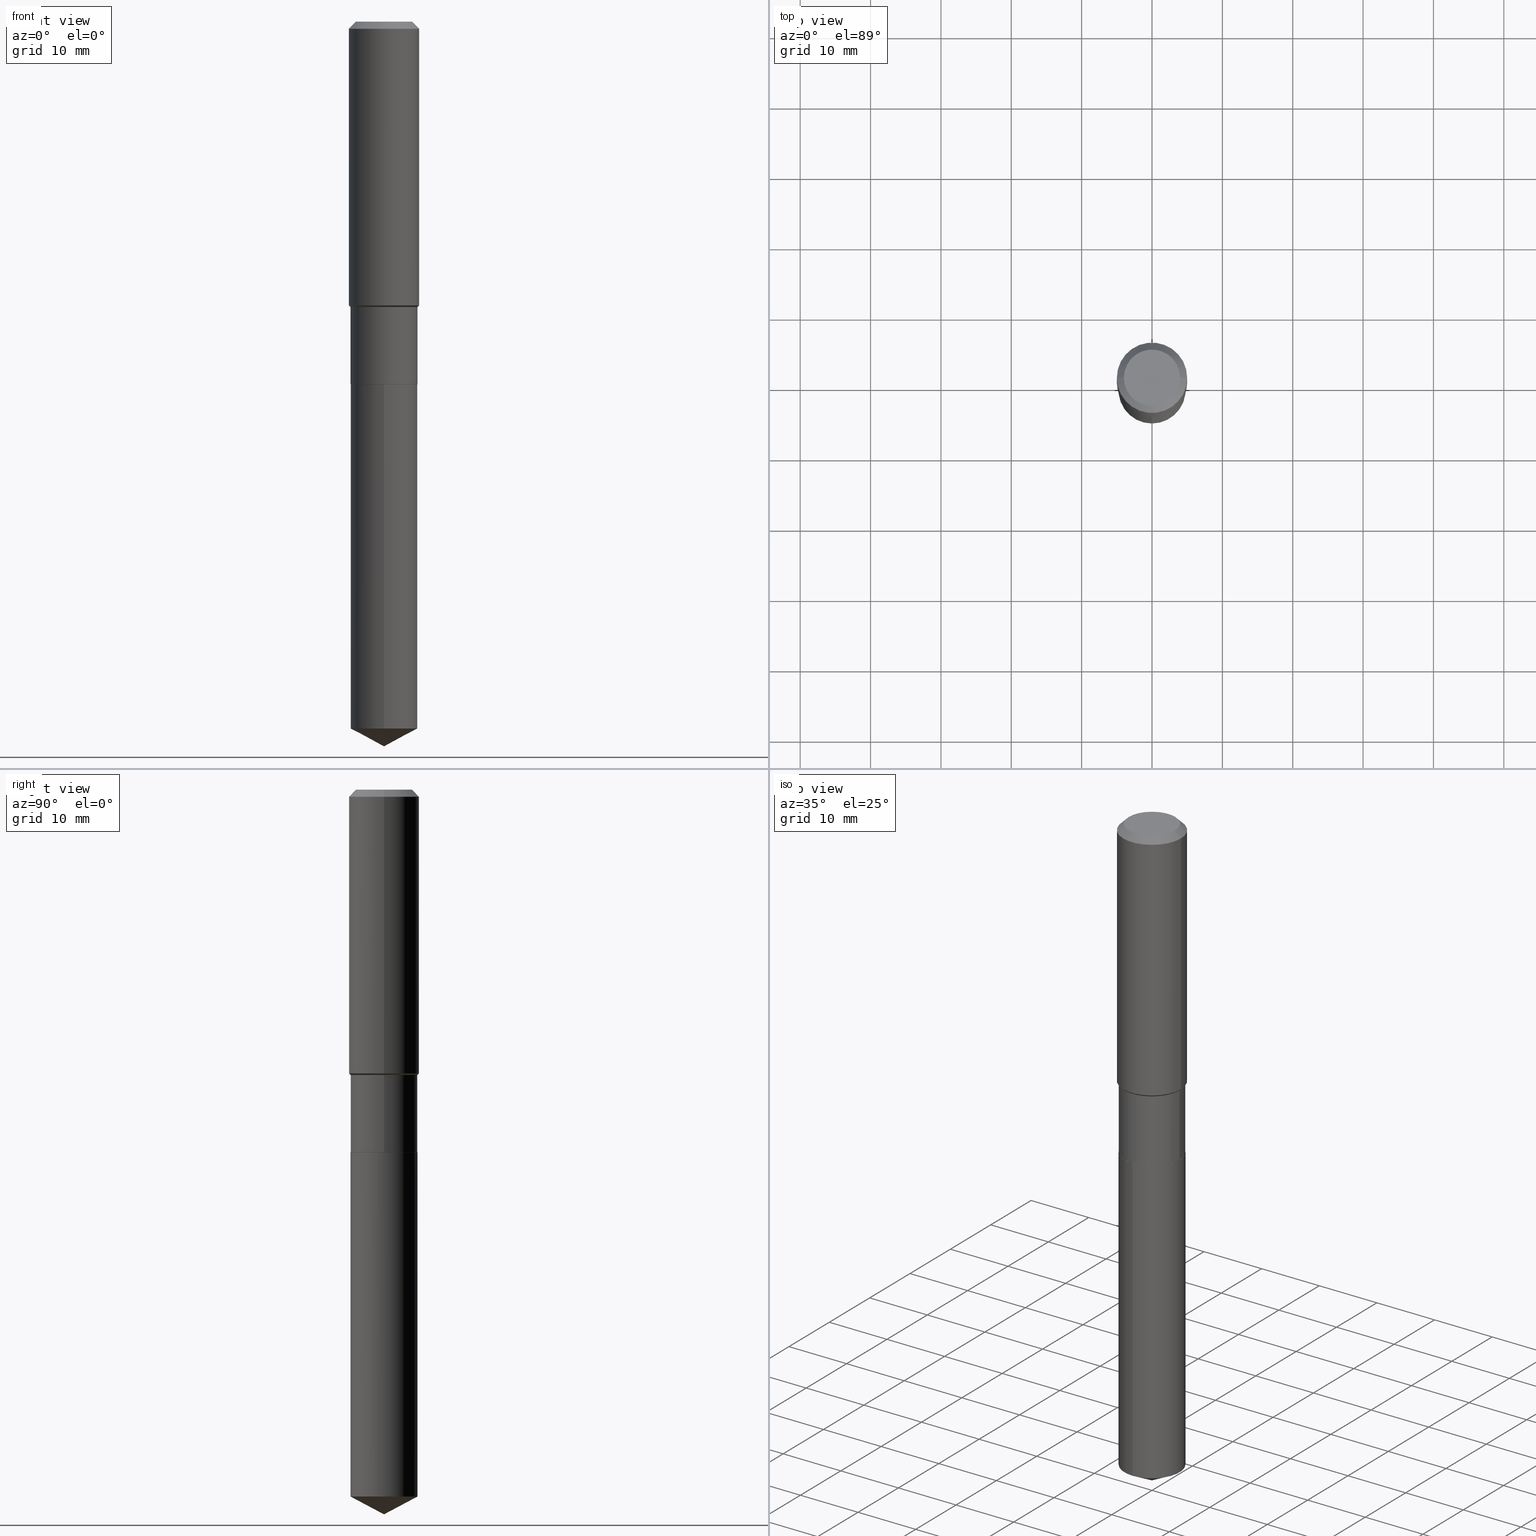
[diagram: canonical four-view strip — front | top / right | iso, engineering-drawing reading convention]
A machine part, canonical four-view strip (front | top / right | iso — engineering-drawing reading convention). The complete STEP part file that produces these views, byte-faithful:
ISO-10303-21;
HEADER;
FILE_DESCRIPTION (( 'STEP AP203' ),
    '1' );
FILE_NAME ('55021.STEP',
    '2024-04-24T16:26:25',
    ( '' ),
    ( '' ),
    'SwSTEP 2.0',
    'SolidWorks 2023',
    '' );
FILE_SCHEMA (( 'CONFIG_CONTROL_DESIGN' ));
ENDSEC;

DATA;
#1 = CLOSED_SHELL ( 'NONE', ( #46, #55, #351, #268, #65, #83, #325, #173, #468, #490, #275, #114 ) ) ;
#2 = CIRCLE ( 'NONE', #223, 0.1875000000000000278 ) ;
#3 = DIRECTION ( 'NONE',  ( -2.445465762291541811E-29, 3.491485697872021130E-15, 1.000000000000000000 ) ) ;
#5 = ORIENTED_EDGE ( 'NONE', *, *, #137, .F. ) ;
#4 = PRODUCT_RELATED_PRODUCT_CATEGORY ( 'detail', '', ( #408 ) ) ;
#6 = CARTESIAN_POINT ( 'NONE',  ( 3.904680042835807186E-29, -5.574848253730850378E-15, -1.596700000000000008 ) ) ;
#7 = VERTEX_POINT ( 'NONE', #287 ) ;
#8 = VECTOR ( 'NONE', #127, 39.37007874015748143 ) ;
#9 = DATE_AND_TIME ( #192, #159 ) ;
#10 = ORIENTED_EDGE ( 'NONE', *, *, #298, .T. ) ;
#11 = LOCAL_TIME ( 12, 26, 25.00000000000000000, #304 ) ;
#12 = CYLINDRICAL_SURFACE ( 'NONE', #423, 0.1875000000000000278 ) ;
#13 = EDGE_LOOP ( 'NONE', ( #116, #426, #232 ) ) ;
#14 = VERTEX_POINT ( 'NONE', #444 ) ;
#15 = EDGE_CURVE ( 'NONE', #122, #451, #369, .T. ) ;
#16 = CARTESIAN_POINT ( 'NONE',  ( 4.959410738943456063E-29, -7.080724155173897732E-15, -2.027999999999999581 ) ) ;
#17 = CLOSED_SHELL ( 'NONE', ( #123, #39, #226, #313, #234 ) ) ;
#18 = ORIENTED_EDGE ( 'NONE', *, *, #214, .F. ) ;
#19 = VECTOR ( 'NONE', #480, 39.37007874015748143 ) ;
#20 = DIRECTION ( 'NONE',  ( -0.7071067811865474617, 7.493145998870352582E-15, 0.7071067811865474617 ) ) ;
#21 = CARTESIAN_POINT ( 'NONE',  ( -0.1869999999999999996, -5.749360012128399581E-15, -2.027999999999999581 ) ) ;
#22 = COORDINATED_UNIVERSAL_TIME_OFFSET ( 5, 0, .BEHIND. ) ;
#23 = FACE_OUTER_BOUND ( 'NONE', #346, .T. ) ;
#24 = DIRECTION ( 'NONE',  ( 1.000000000000000000, -6.982962677686265133E-15, 0.000000000000000000 ) ) ;
#25 = LINE ( 'NONE', #171, #19 ) ;
#26 = CARTESIAN_POINT ( 'NONE',  ( 4.959410738943456063E-29, -7.080724155173897732E-15, -2.027999999999999581 ) ) ;
#27 = CARTESIAN_POINT ( 'NONE',  ( 0.000000000000000000, 0.000000000000000000, 0.000000000000000000 ) ) ;
#28 = CARTESIAN_POINT ( 'NONE',  ( 4.958188004540363822E-29, -7.078978414504476228E-15, -2.027499999999999414 ) ) ;
#29 = CYLINDRICAL_SURFACE ( 'NONE', #184, 0.1875000000000000278 ) ;
#30 = DIRECTION ( 'NONE',  ( -2.445468806185136597E-29, 3.491481338843145583E-15, 1.000000000000000000 ) ) ;
#31 = FACE_OUTER_BOUND ( 'NONE', #34, .T. ) ;
#32 = DESIGN_CONTEXT ( 'detailed design', #211, 'design' ) ;
#33 = EDGE_CURVE ( 'NONE', #82, #442, #251, .T. ) ;
#34 = EDGE_LOOP ( 'NONE', ( #299, #379, #227, #75 ) ) ;
#35 = AXIS2_PLACEMENT_3D ( 'NONE', #431, #392, #355 ) ;
#36 = EDGE_CURVE ( 'NONE', #464, #312, #103, .T. ) ;
#37 = AXIS2_PLACEMENT_3D ( 'NONE', #99, #252, #438 ) ;
#38 = VECTOR ( 'NONE', #280, 39.37007874015748143 ) ;
#39 = ADVANCED_FACE ( 'NONE', ( #175 ), #289, .T. ) ;
#40 = DIRECTION ( 'NONE',  ( -6.982962677686265922E-15, -1.000000000000000000, 2.913971193241880372E-15 ) ) ;
#41 = VERTEX_POINT ( 'NONE', #66 ) ;
#42 = EDGE_LOOP ( 'NONE', ( #124, #191 ) ) ;
#43 = VECTOR ( 'NONE', #86, 39.37007874015748143 ) ;
#44 = UNCERTAINTY_MEASURE_WITH_UNIT (LENGTH_MEASURE( 1.000000000000000082E-05 ), #413, 'distance_accuracy_value', 'NONE');
#45 = EDGE_LOOP ( 'NONE', ( #238, #186 ) ) ;
#46 = ADVANCED_FACE ( 'NONE', ( #31 ), #76, .T. ) ;
#47 = DIRECTION ( 'NONE',  ( 1.000000000000000000, -6.982962677686264344E-15, 0.000000000000000000 ) ) ;
#48 = ORIENTED_EDGE ( 'NONE', *, *, #181, .F. ) ;
#49 = CARTESIAN_POINT ( 'NONE',  ( 0.1968500000000001082, -1.374596203102542397E-15, 9.598753983154305062E-30 ) ) ;
#50 = ORIENTED_EDGE ( 'NONE', *, *, #242, .T. ) ;
#51 = CARTESIAN_POINT ( 'NONE',  ( -1.309305502066077978E-15, -0.1875000000000137668, -3.955304481563473029 ) ) ;
#52 = AXIS2_PLACEMENT_3D ( 'NONE', #180, #481, #136 ) ;
#53 = DIRECTION ( 'NONE',  ( -2.445468806185136597E-29, 3.491481338843145583E-15, 1.000000000000000000 ) ) ;
#54 = ORGANIZATION ( 'UNSPECIFIED', 'UNSPECIFIED', '' ) ;
#55 = ADVANCED_FACE ( 'NONE', ( #356 ), #477, .T. ) ;
#56 = FACE_OUTER_BOUND ( 'NONE', #422, .T. ) ;
#57 = CARTESIAN_POINT ( 'NONE',  ( 4.959410738943456624E-29, -7.080724155173898521E-15, -2.027999999999999581 ) ) ;
#58 = APPROVAL_ROLE ( '' ) ;
#59 = DIRECTION ( 'NONE',  ( 1.000000000000000000, -6.982962677686266711E-15, 0.000000000000000000 ) ) ;
#60 = CARTESIAN_POINT ( 'NONE',  ( 9.672567862117980810E-29, -1.380988018799741767E-14, -3.955304481563473473 ) ) ;
#61 = PERSON_AND_ORGANIZATION_ROLE ( 'classification_officer' ) ;
#62 = LINE ( 'NONE', #365, #391 ) ;
#63 = ORIENTED_EDGE ( 'NONE', *, *, #259, .T. ) ;
#64 = DIRECTION ( 'NONE',  ( -6.165590087286842340E-15, -0.8829475928589273215, 0.4694715627858898066 ) ) ;
#65 = ADVANCED_FACE ( 'NONE', ( #483 ), #485, .T. ) ;
#66 = CARTESIAN_POINT ( 'NONE',  ( 0.1574800000000000089, -1.284169937930321189E-15, 3.855188123724205385E-18 ) ) ;
#67 = CARTESIAN_POINT ( 'NONE',  ( 9.916363666092201945E-29, -1.415797450487104408E-14, -4.054999999999999716 ) ) ;
#68 = CIRCLE ( 'NONE', #257, 0.1869999999999999996 ) ;
#69 = COORDINATED_UNIVERSAL_TIME_OFFSET ( 5, 0, .BEHIND. ) ;
#70 = EDGE_CURVE ( 'NONE', #81, #385, #199, .T. ) ;
#71 = VECTOR ( 'NONE', #260, 39.37007874015748143 ) ;
#72 = DIRECTION ( 'NONE',  ( -6.982962677686265133E-15, -1.000000000000000000, 3.541896320645539569E-15 ) ) ;
#73 = APPROVAL_STATUS ( 'not_yet_approved' ) ;
#74 = DIRECTION ( 'NONE',  ( 1.000000000000000000, -6.982962677686266711E-15, 4.876176775795935793E-29 ) ) ;
#75 = ORIENTED_EDGE ( 'NONE', *, *, #344, .F. ) ;
#76 = CONICAL_SURFACE ( 'NONE', #446, 0.1869999999999999996, 0.7853981633972775267 ) ;
#77 = DIRECTION ( 'NONE',  ( -2.445468806185136597E-29, 3.491481338843145583E-15, 1.000000000000000000 ) ) ;
#78 = ORIENTED_EDGE ( 'NONE', *, *, #137, .T. ) ;
#79 = DIRECTION ( 'NONE',  ( 2.445465762291541251E-29, -3.491485697872021130E-15, -1.000000000000000000 ) ) ;
#81 = VERTEX_POINT ( 'NONE', #354 ) ;
#80 = APPROVAL ( #394, 'UNSPECIFIED' ) ;
#82 = VERTEX_POINT ( 'NONE', #21 ) ;
#83 = ADVANCED_FACE ( 'NONE', ( #167 ), #210, .T. ) ;
#84 = AXIS2_PLACEMENT_3D ( 'NONE', #284, #142, #202 ) ;
#85 = CIRCLE ( 'NONE', #434, 0.1968500000000000250 ) ;
#86 = DIRECTION ( 'NONE',  ( -2.445468806185136877E-29, 3.491481338843145188E-15, 1.000000000000000000 ) ) ;
#87 = ORIENTED_EDGE ( 'NONE', *, *, #414, .T. ) ;
#88 = LOCAL_TIME ( 12, 26, 25.00000000000000000, #205 ) ;
#89 = EDGE_LOOP ( 'NONE', ( #472, #420, #371, #197 ) ) ;
#90 = CARTESIAN_POINT ( 'NONE',  ( 9.916363666092200824E-29, -1.415797450487104408E-14, -4.054999999999999716 ) ) ;
#91 = ORIENTED_EDGE ( 'NONE', *, *, #198, .F. ) ;
#92 = CARTESIAN_POINT ( 'NONE',  ( -0.1968500000000001082, 1.398703375343757985E-15, -9.682923725166787881E-30 ) ) ;
#93 = AXIS2_PLACEMENT_3D ( 'NONE', #138, #404, #129 ) ;
#94 = DIRECTION ( 'NONE',  ( -2.445465762291541811E-29, 3.491485697872021130E-15, 1.000000000000000000 ) ) ;
#95 = CARTESIAN_POINT ( 'NONE',  ( -0.1968500000000000250, -1.441127886417702753E-15, -0.03937000000000029365 ) ) ;
#96 = DIRECTION ( 'NONE',  ( -6.982962677686265922E-15, -1.000000000000000000, 2.913971193241880372E-15 ) ) ;
#97 = PERSON_AND_ORGANIZATION ( #182, #54 ) ;
#98 = CARTESIAN_POINT ( 'NONE',  ( -4.713871149261283817E-47, 6.730158695841841775E-33, 1.927594061857935365E-18 ) ) ;
#99 = CARTESIAN_POINT ( 'NONE',  ( 4.959410738943456624E-29, -7.080724155173898521E-15, -2.027999999999999581 ) ) ;
#100 = DATE_AND_TIME ( #215, #239 ) ;
#101 = DIRECTION ( 'NONE',  ( 0.7071067811865450192, -7.319954787623246579E-15, -0.7071067811865500152 ) ) ;
#102 = ORIENTED_EDGE ( 'NONE', *, *, #246, .F. ) ;
#103 = CIRCLE ( 'NONE', #373, 0.1968500000000000250 ) ;
#104 = AXIS2_PLACEMENT_3D ( 'NONE', #271, #474, #360 ) ;
#105 = PERSON_AND_ORGANIZATION_ROLE ( 'design_owner' ) ;
#106 = CC_DESIGN_DATE_AND_TIME_ASSIGNMENT ( #9, #256, ( #220 ) ) ;
#107 = APPROVAL ( #326, 'UNSPECIFIED' ) ;
#108 = FACE_OUTER_BOUND ( 'NONE', #13, .T. ) ;
#109 = CYLINDRICAL_SURFACE ( 'NONE', #341, 0.1968500000000001082 ) ;
#110 = AXIS2_PLACEMENT_3D ( 'NONE', #292, #3, #72 ) ;
#111 =( LENGTH_UNIT ( ) NAMED_UNIT ( * ) SI_UNIT ( $, .METRE. ) );
#112 = DIRECTION ( 'NONE',  ( -2.445468806185136597E-29, 3.491481338843145583E-15, 1.000000000000000000 ) ) ;
#113 = ORIENTED_EDGE ( 'NONE', *, *, #427, .F. ) ;
#114 = ADVANCED_FACE ( 'NONE', ( #393 ), #382, .T. ) ;
#115 = CARTESIAN_POINT ( 'NONE',  ( 9.916376120384752595E-29, -1.415795682464992640E-14, -4.054999999999999716 ) ) ;
#116 = ORIENTED_EDGE ( 'NONE', *, *, #298, .F. ) ;
#117 = AXIS2_PLACEMENT_3D ( 'NONE', #315, #362, #139 ) ;
#118 = PRODUCT_DEFINITION_FORMATION_WITH_SPECIFIED_SOURCE ( 'ANY', '', #408, .NOT_KNOWN. ) ;
#119 = APPROVAL ( #73, 'UNSPECIFIED' ) ;
#120 = LINE ( 'NONE', #49, #43 ) ;
#121 = EDGE_LOOP ( 'NONE', ( #429, #386, #78, #411 ) ) ;
#122 = VERTEX_POINT ( 'NONE', #170 ) ;
#123 = ADVANCED_FACE ( 'NONE', ( #281 ), #29, .T. ) ;
#124 = ORIENTED_EDGE ( 'NONE', *, *, #368, .T. ) ;
#125 = LINE ( 'NONE', #115, #71 ) ;
#126 = ORIENTED_EDGE ( 'NONE', *, *, #374, .F. ) ;
#127 = DIRECTION ( 'NONE',  ( -2.445465762291541811E-29, 3.491485697872021130E-15, 1.000000000000000000 ) ) ;
#128 = ORIENTED_EDGE ( 'NONE', *, *, #258, .T. ) ;
#129 = DIRECTION ( 'NONE',  ( 1.000000000000000000, -6.982962677686266711E-15, 4.876176775795935793E-29 ) ) ;
#130 = CARTESIAN_POINT ( 'NONE',  ( 4.959410738943456624E-29, -7.080724155173898521E-15, -2.027999999999999581 ) ) ;
#131 = FACE_OUTER_BOUND ( 'NONE', #470, .T. ) ;
#132 = VECTOR ( 'NONE', #101, 39.37007874015748143 ) ;
#133 = VERTEX_POINT ( 'NONE', #207 ) ;
#134 = PERSON_AND_ORGANIZATION ( #182, #54 ) ;
#135 = FACE_OUTER_BOUND ( 'NONE', #42, .T. ) ;
#136 = DIRECTION ( 'NONE',  ( -1.000000000000000000, 6.982962677686265922E-15, 0.000000000000000000 ) ) ;
#137 = EDGE_CURVE ( 'NONE', #14, #261, #476, .T. ) ;
#138 = CARTESIAN_POINT ( 'NONE',  ( 0.000000000000000000, 0.000000000000000000, 0.000000000000000000 ) ) ;
#139 = DIRECTION ( 'NONE',  ( 1.000000000000000000, -6.982962677686266711E-15, 4.876176775795935793E-29 ) ) ;
#140 = PERSON_AND_ORGANIZATION ( #182, #54 ) ;
#141 =( NAMED_UNIT ( * ) SI_UNIT ( $, .STERADIAN. ) SOLID_ANGLE_UNIT ( ) );
#142 = DIRECTION ( 'NONE',  ( -2.445468806185136597E-29, 3.491481338843145583E-15, 1.000000000000000000 ) ) ;
#143 = EDGE_CURVE ( 'NONE', #82, #165, #145, .T. ) ;
#144 = VERTEX_POINT ( 'NONE', #67 ) ;
#145 = LINE ( 'NONE', #150, #456 ) ;
#146 = APPLICATION_CONTEXT ( 'configuration controlled 3d designs of mechanical parts and assemblies' ) ;
#147 = DIRECTION ( 'NONE',  ( -2.445468806185136877E-29, 3.491481338843145188E-15, 1.000000000000000000 ) ) ;
#148 = ORIENTED_EDGE ( 'NONE', *, *, #448, .F. ) ;
#149 = CIRCLE ( 'NONE', #453, 0.1968500000000002192 ) ;
#150 = CARTESIAN_POINT ( 'NONE',  ( -0.1869999999999999996, -5.752009239302511571E-15, -2.027999999999999581 ) ) ;
#151 = CC_DESIGN_PERSON_AND_ORGANIZATION_ASSIGNMENT ( #479, #398, ( #118 ) ) ;
#152 = DIRECTION ( 'NONE',  ( 1.000000000000000000, -6.982962677686264344E-15, 0.000000000000000000 ) ) ;
#153 = ADVANCED_BREP_SHAPE_REPRESENTATION ( '55021', ( #183, #337, #415 ), #262 ) ;
#154 = EDGE_LOOP ( 'NONE', ( #193, #213, #264, #270 ) ) ;
#155 = AXIS2_PLACEMENT_3D ( 'NONE', #303, #161, #465 ) ;
#156 = DIRECTION ( 'NONE',  ( 1.000000000000000000, -6.982962677686264344E-15, 0.000000000000000000 ) ) ;
#157 = APPROVAL_ROLE ( '' ) ;
#158 = VERTEX_POINT ( 'NONE', #295 ) ;
#159 = LOCAL_TIME ( 12, 26, 25.00000000000000000, #69 ) ;
#160 = ORIENTED_EDGE ( 'NONE', *, *, #380, .F. ) ;
#161 = DIRECTION ( 'NONE',  ( -2.438088387897960049E-29, 3.491481338843145188E-15, 1.000000000000000000 ) ) ;
#162 = ORIENTED_EDGE ( 'NONE', *, *, #448, .T. ) ;
#163 = AXIS2_PLACEMENT_3D ( 'NONE', #28, #240, #323 ) ;
#164 = DIRECTION ( 'NONE',  ( -2.445465762291541811E-29, 3.491485697872021130E-15, 1.000000000000000000 ) ) ;
#165 = VERTEX_POINT ( 'NONE', #454 ) ;
#166 = LINE ( 'NONE', #250, #8 ) ;
#167 = FACE_OUTER_BOUND ( 'NONE', #121, .T. ) ;
#168 = CALENDAR_DATE ( 2024, 24, 4 ) ;
#169 = DIRECTION ( 'NONE',  ( 2.445468806185136597E-29, -3.491481338843145583E-15, -1.000000000000000000 ) ) ;
#170 = CARTESIAN_POINT ( 'NONE',  ( -1.309305502066125507E-15, -0.1875000000000070777, -2.027999999999999137 ) ) ;
#171 = CARTESIAN_POINT ( 'NONE',  ( -0.1968500000000000250, 1.237136582792286225E-15, -0.03937000000000029365 ) ) ;
#172 = CIRCLE ( 'NONE', #452, 0.1968500000000002192 ) ;
#173 = ADVANCED_FACE ( 'NONE', ( #189 ), #109, .T. ) ;
#174 = CIRCLE ( 'NONE', #163, 0.1875000000000000278 ) ;
#175 = FACE_OUTER_BOUND ( 'NONE', #236, .T. ) ;
#176 = CC_DESIGN_APPROVAL ( #119, ( #220 ) ) ;
#177 = CARTESIAN_POINT ( 'NONE',  ( -9.427742298522567634E-47, 1.346031739168368355E-32, 3.855188123715870730E-18 ) ) ;
#178 = CARTESIAN_POINT ( 'NONE',  ( 4.959410738943456063E-29, -7.080724155173897732E-15, -2.027999999999999581 ) ) ;
#179 = MECHANICAL_CONTEXT ( 'NONE', #146, 'mechanical' ) ;
#180 = CARTESIAN_POINT ( 'NONE',  ( 9.627810689950954155E-31, -1.374596203102556547E-16, -0.03937000000000029365 ) ) ;
#181 = EDGE_CURVE ( 'NONE', #442, #82, #68, .T. ) ;
#182 = PERSON ( 'UNSPECIFIED', 'UNSPECIFIED', 'UNSPECIFIED', ('UNSPECIFIED'), ('UNSPECIFIED'), ('UNSPECIFIED') ) ;
#183 = MANIFOLD_SOLID_BREP ( 'Body-Move/Copy2[1]', #17 ) ;
#184 = AXIS2_PLACEMENT_3D ( 'NONE', #178, #324, #96 ) ;
#185 = CARTESIAN_POINT ( 'NONE',  ( -1.309305502066125507E-15, -0.1875000000000070777, -2.027999999999999137 ) ) ;
#186 = ORIENTED_EDGE ( 'NONE', *, *, #288, .T. ) ;
#187 = VECTOR ( 'NONE', #338, 39.37007874015748143 ) ;
#188 = AXIS2_PLACEMENT_3D ( 'NONE', #396, #286, #443 ) ;
#189 = FACE_OUTER_BOUND ( 'NONE', #462, .T. ) ;
#190 = CARTESIAN_POINT ( 'NONE',  ( 9.627810689950954155E-31, -1.374596203102556547E-16, -0.03937000000000029365 ) ) ;
#191 = ORIENTED_EDGE ( 'NONE', *, *, #427, .T. ) ;
#192 = CALENDAR_DATE ( 2024, 24, 4 ) ;
#193 = ORIENTED_EDGE ( 'NONE', *, *, #143, .F. ) ;
#194 = ORIENTED_EDGE ( 'NONE', *, *, #380, .T. ) ;
#195 = ORIENTED_EDGE ( 'NONE', *, *, #414, .F. ) ;
#196 = FACE_OUTER_BOUND ( 'NONE', #466, .T. ) ;
#197 = ORIENTED_EDGE ( 'NONE', *, *, #288, .F. ) ;
#198 = EDGE_CURVE ( 'NONE', #158, #133, #172, .T. ) ;
#199 = CIRCLE ( 'NONE', #278, 0.1875000000000000278 ) ;
#200 = AXIS2_PLACEMENT_3D ( 'NONE', #98, #247, #400 ) ;
#201 = CARTESIAN_POINT ( 'NONE',  ( 0.1869999999999999996, -8.386538175901229733E-15, -2.027999999999999581 ) ) ;
#202 = DIRECTION ( 'NONE',  ( 1.000000000000000000, -6.982962677686266711E-15, 4.876176775795935793E-29 ) ) ;
#203 = DIRECTION ( 'NONE',  ( -2.445468806185136877E-29, 3.491481338843145188E-15, 1.000000000000000000 ) ) ;
#204 = DIRECTION ( 'NONE',  ( -2.445468806185136597E-29, 3.491481338843145583E-15, 1.000000000000000000 ) ) ;
#205 = COORDINATED_UNIVERSAL_TIME_OFFSET ( 5, 0, .BEHIND. ) ;
#206 = CARTESIAN_POINT ( 'NONE',  ( 9.627810689950954155E-31, -1.374596203102556547E-16, -0.03937000000000029365 ) ) ;
#207 = CARTESIAN_POINT ( 'NONE',  ( -0.1968500000000002192, -4.143499527868906923E-15, -1.587349999999999595 ) ) ;
#208 = CARTESIAN_POINT ( 'NONE',  ( 0.1869999999999999996, -8.386538175901229733E-15, -2.027999999999999581 ) ) ;
#209 = CONICAL_SURFACE ( 'NONE', #110, 74.04434902938398011, 1.082104136236488934 ) ;
#210 = CYLINDRICAL_SURFACE ( 'NONE', #117, 0.1874999999999999722 ) ;
#211 = APPLICATION_CONTEXT ( 'configuration controlled 3d designs of mechanical parts and assemblies' ) ;
#212 = CARTESIAN_POINT ( 'NONE',  ( 0.1968500000000000250, -1.487948651171581601E-15, -0.03937000000000029365 ) ) ;
#213 = ORIENTED_EDGE ( 'NONE', *, *, #33, .T. ) ;
#214 = EDGE_CURVE ( 'NONE', #385, #122, #296, .T. ) ;
#215 = CALENDAR_DATE ( 2024, 24, 4 ) ;
#216 = AXIS2_PLACEMENT_3D ( 'NONE', #248, #241, #322 ) ;
#217 = DIRECTION ( 'NONE',  ( -2.445468806185136597E-29, 3.491481338843145583E-15, 1.000000000000000000 ) ) ;
#218 = CONICAL_SURFACE ( 'NONE', #333, 0.1874999999999999445, 0.7853981633974482790 ) ;
#219 = SHAPE_DEFINITION_REPRESENTATION ( #233, #153 ) ;
#220 = SECURITY_CLASSIFICATION ( '', '', #440 ) ;
#221 = APPROVAL_DATE_TIME ( #489, #119 ) ;
#222 = CARTESIAN_POINT ( 'NONE',  ( 0.1874999999999999722, -1.309305502066174811E-15, 9.142831454617378210E-30 ) ) ;
#223 = AXIS2_PLACEMENT_3D ( 'NONE', #16, #164, #455 ) ;
#224 = CARTESIAN_POINT ( 'NONE',  ( 0.1968500000000000250, -1.512055823412797189E-15, -0.03937000000000029365 ) ) ;
#225 = VERTEX_POINT ( 'NONE', #488 ) ;
#226 = ADVANCED_FACE ( 'NONE', ( #108 ), #209, .T. ) ;
#227 = ORIENTED_EDGE ( 'NONE', *, *, #336, .F. ) ;
#228 = EDGE_LOOP ( 'NONE', ( #300, #63, #377, #5 ) ) ;
#229 = VECTOR ( 'NONE', #332, 39.37007874015748143 ) ;
#230 = CIRCLE ( 'NONE', #35, 0.1875000000000000278 ) ;
#231 = CARTESIAN_POINT ( 'NONE',  ( 4.959410738943456063E-29, -7.080724155173897732E-15, -2.027999999999999581 ) ) ;
#232 = ORIENTED_EDGE ( 'NONE', *, *, #70, .F. ) ;
#233 = PRODUCT_DEFINITION_SHAPE ( 'NONE', 'NONE',  #273 ) ;
#234 = ADVANCED_FACE ( 'NONE', ( #235 ), #463, .F. ) ;
#235 = FACE_OUTER_BOUND ( 'NONE', #45, .T. ) ;
#236 = EDGE_LOOP ( 'NONE', ( #126, #10, #432 ) ) ;
#237 = DIRECTION ( 'NONE',  ( 1.000000000000000000, -6.982962677686265922E-15, 0.000000000000000000 ) ) ;
#238 = ORIENTED_EDGE ( 'NONE', *, *, #15, .T. ) ;
#239 = LOCAL_TIME ( 12, 26, 25.00000000000000000, #285 ) ;
#240 = DIRECTION ( 'NONE',  ( -2.445468806185136597E-29, 3.491481338843145583E-15, 1.000000000000000000 ) ) ;
#241 = DIRECTION ( 'NONE',  ( -2.445465762291541811E-29, 3.491485697872021130E-15, 1.000000000000000000 ) ) ;
#242 = EDGE_CURVE ( 'NONE', #7, #261, #447, .T. ) ;
#243 = PERSON_AND_ORGANIZATION ( #182, #54 ) ;
#244 = DIRECTION ( 'NONE',  ( 0.7071067811865474617, -2.468850131082256666E-15, 0.7071067811865474617 ) ) ;
#245 = ORIENTED_EDGE ( 'NONE', *, *, #475, .F. ) ;
#246 = EDGE_CURVE ( 'NONE', #312, #464, #85, .T. ) ;
#247 = DIRECTION ( 'NONE',  ( 2.438088387897960049E-29, -3.491481338843145188E-15, -1.000000000000000000 ) ) ;
#248 = CARTESIAN_POINT ( 'NONE',  ( -8.636180977866881528E-28, 1.233021011805946806E-13, 35.31507874015748172 ) ) ;
#249 = DATE_AND_TIME ( #357, #88 ) ;
#250 = CARTESIAN_POINT ( 'NONE',  ( 1.332267629550237152E-15, 0.1874999999999929501, -2.028000000000000025 ) ) ;
#251 = CIRCLE ( 'NONE', #37, 0.1869999999999999996 ) ;
#252 = DIRECTION ( 'NONE',  ( -2.445468806185136597E-29, 3.491481338843145583E-15, 1.000000000000000000 ) ) ;
#253 = APPROVAL_ROLE ( '' ) ;
#254 = EDGE_CURVE ( 'NONE', #261, #7, #384, .T. ) ;
#255 = DIRECTION ( 'NONE',  ( 1.000000000000000000, -6.982962677686265133E-15, 0.000000000000000000 ) ) ;
#256 = DATE_TIME_ROLE ( 'classification_date' ) ;
#257 = AXIS2_PLACEMENT_3D ( 'NONE', #335, #112, #255 ) ;
#258 = EDGE_CURVE ( 'NONE', #158, #312, #120, .T. ) ;
#259 = EDGE_CURVE ( 'NONE', #165, #7, #381, .T. ) ;
#260 = DIRECTION ( 'NONE',  ( 6.273719981627773176E-15, 0.8829475928589307632, 0.4694715627858835894 ) ) ;
#261 = VERTEX_POINT ( 'NONE', #263 ) ;
#262 =( GEOMETRIC_REPRESENTATION_CONTEXT ( 3 ) GLOBAL_UNCERTAINTY_ASSIGNED_CONTEXT ( ( #44 ) ) GLOBAL_UNIT_ASSIGNED_CONTEXT ( ( #413, #487, #141 ) ) REPRESENTATION_CONTEXT ( 'NONE', 'WORKASPACE' ) );
#263 = CARTESIAN_POINT ( 'NONE',  ( 0.1874999999999999445, -6.884153755797024597E-15, -1.596700000000000008 ) ) ;
#264 = ORIENTED_EDGE ( 'NONE', *, *, #344, .T. ) ;
#265 = DIRECTION ( 'NONE',  ( 6.982962677686265922E-15, 1.000000000000000000, -3.491485697872021130E-15 ) ) ;
#266 = EDGE_LOOP ( 'NONE', ( #272, #162, #91, #195 ) ) ;
#267 = ORIENTED_EDGE ( 'NONE', *, *, #15, .F. ) ;
#268 = ADVANCED_FACE ( 'NONE', ( #349 ), #218, .T. ) ;
#269 = AXIS2_PLACEMENT_3D ( 'NONE', #177, #30, #317 ) ;
#270 = ORIENTED_EDGE ( 'NONE', *, *, #418, .F. ) ;
#271 = CARTESIAN_POINT ( 'NONE',  ( -9.427742298522567634E-47, 1.346031739168368355E-32, 3.855188123715870730E-18 ) ) ;
#272 = ORIENTED_EDGE ( 'NONE', *, *, #254, .T. ) ;
#273 = PRODUCT_DEFINITION ( 'UNKNOWN', '', #118, #32 ) ;
#274 = LINE ( 'NONE', #90, #320 ) ;
#275 = ADVANCED_FACE ( 'NONE', ( #196 ), #416, .F. ) ;
#276 = DIRECTION ( 'NONE',  ( -6.982962677686265922E-15, -1.000000000000000000, 2.913971193241880372E-15 ) ) ;
#277 = APPROVAL_DATE_TIME ( #100, #107 ) ;
#278 = AXIS2_PLACEMENT_3D ( 'NONE', #60, #94, #276 ) ;
#279 = VECTOR ( 'NONE', #20, 39.37007874015748854 ) ;
#280 = DIRECTION ( 'NONE',  ( 0.7071067811864267805, -2.468850131080992517E-15, 0.7071067811866682540 ) ) ;
#281 = FACE_OUTER_BOUND ( 'NONE', #293, .T. ) ;
#282 = PERSON_AND_ORGANIZATION_ROLE ( 'design_supplier' ) ;
#283 = PLANE ( 'NONE',  #200 ) ;
#284 = CARTESIAN_POINT ( 'NONE',  ( 0.000000000000000000, 0.000000000000000000, 0.000000000000000000 ) ) ;
#285 = COORDINATED_UNIVERSAL_TIME_OFFSET ( 5, 0, .BEHIND. ) ;
#286 = DIRECTION ( 'NONE',  ( -2.445468806185136597E-29, 3.491481338843145583E-15, 1.000000000000000000 ) ) ;
#287 = CARTESIAN_POINT ( 'NONE',  ( -0.1874999999999999445, -4.994645704567475454E-15, -1.596700000000000008 ) ) ;
#288 = EDGE_CURVE ( 'NONE', #451, #122, #2, .T. ) ;
#289 = CONICAL_SURFACE ( 'NONE', #216, 74.04434902938398011, 1.082104136236488934 ) ;
#290 = CIRCLE ( 'NONE', #104, 0.1574800000000000089 ) ;
#291 = DIRECTION ( 'NONE',  ( 1.000000000000000000, -6.982962677686265133E-15, 0.000000000000000000 ) ) ;
#292 = CARTESIAN_POINT ( 'NONE',  ( -8.636180977866881528E-28, 1.233021011805946806E-13, 35.31507874015748172 ) ) ;
#293 = EDGE_LOOP ( 'NONE', ( #334, #348, #267, #18 ) ) ;
#294 = AXIS2_PLACEMENT_3D ( 'NONE', #421, #79, #265 ) ;
#295 = CARTESIAN_POINT ( 'NONE',  ( 0.1968500000000002192, -6.916799106315208686E-15, -1.587349999999999595 ) ) ;
#296 = LINE ( 'NONE', #185, #229 ) ;
#297 = ORIENTED_EDGE ( 'NONE', *, *, #399, .F. ) ;
#298 = EDGE_CURVE ( 'NONE', #144, #81, #125, .T. ) ;
#299 = ORIENTED_EDGE ( 'NONE', *, *, #181, .T. ) ;
#300 = ORIENTED_EDGE ( 'NONE', *, *, #336, .T. ) ;
#301 = APPROVAL_PERSON_ORGANIZATION ( #243, #80, #58 ) ;
#302 = CC_DESIGN_PERSON_AND_ORGANIZATION_ASSIGNMENT ( #134, #282, ( #118 ) ) ;
#303 = CARTESIAN_POINT ( 'NONE',  ( 2.890591265467325299E-29, -1.004339139108359101E-14, -2.027999999999999581 ) ) ;
#304 = COORDINATED_UNIVERSAL_TIME_OFFSET ( 5, 0, .BEHIND. ) ;
#305 = ORIENTED_EDGE ( 'NONE', *, *, #399, .T. ) ;
#306 = CC_DESIGN_DATE_AND_TIME_ASSIGNMENT ( #316, #435, ( #273 ) ) ;
#307 = ORIENTED_EDGE ( 'NONE', *, *, #246, .T. ) ;
#308 = CARTESIAN_POINT ( 'NONE',  ( -0.1874999999999999722, 1.332267629550187651E-15, -9.223003294227946589E-30 ) ) ;
#309 = ORIENTED_EDGE ( 'NONE', *, *, #475, .T. ) ;
#310 = CIRCLE ( 'NONE', #269, 0.1574800000000000089 ) ;
#311 = CARTESIAN_POINT ( 'NONE',  ( 4.958188004540363822E-29, -7.078978414504476228E-15, -2.027499999999999414 ) ) ;
#312 = VERTEX_POINT ( 'NONE', #224 ) ;
#313 = ADVANCED_FACE ( 'NONE', ( #345 ), #12, .T. ) ;
#314 = CARTESIAN_POINT ( 'NONE',  ( 1.332267629550284681E-15, 0.1874999999999929501, -2.028000000000000025 ) ) ;
#315 = CARTESIAN_POINT ( 'NONE',  ( 0.000000000000000000, 0.000000000000000000, 0.000000000000000000 ) ) ;
#316 = DATE_AND_TIME ( #168, #410 ) ;
#317 = DIRECTION ( 'NONE',  ( 1.000000000000000000, -6.982962677686265922E-15, 4.876223630392693006E-29 ) ) ;
#318 = DIRECTION ( 'NONE',  ( -2.445465762291541811E-29, 3.491485697872021130E-15, 1.000000000000000000 ) ) ;
#319 = APPROVAL_DATE_TIME ( #249, #80 ) ;
#320 = VECTOR ( 'NONE', #64, 39.37007874015748143 ) ;
#321 = LINE ( 'NONE', #92, #370 ) ;
#322 = DIRECTION ( 'NONE',  ( -6.982962677686265133E-15, -1.000000000000000000, 3.541896320645539569E-15 ) ) ;
#323 = DIRECTION ( 'NONE',  ( 1.000000000000000000, -6.982962677686266711E-15, 0.000000000000000000 ) ) ;
#324 = DIRECTION ( 'NONE',  ( -2.445465762291541811E-29, 3.491485697872021130E-15, 1.000000000000000000 ) ) ;
#325 = ADVANCED_FACE ( 'NONE', ( #131 ), #467, .T. ) ;
#326 = APPROVAL_STATUS ( 'not_yet_approved' ) ;
#327 = ORIENTED_EDGE ( 'NONE', *, *, #198, .T. ) ;
#328 = PERSON_AND_ORGANIZATION ( #182, #54 ) ;
#329 = CC_DESIGN_APPROVAL ( #107, ( #273 ) ) ;
#330 = DIRECTION ( 'NONE',  ( -2.445468806185136597E-29, 3.491481338843145583E-15, 1.000000000000000000 ) ) ;
#331 = CC_DESIGN_PERSON_AND_ORGANIZATION_ASSIGNMENT ( #328, #105, ( #408 ) ) ;
#332 = DIRECTION ( 'NONE',  ( -2.445465762291541811E-29, 3.491485697872021130E-15, 1.000000000000000000 ) ) ;
#333 = AXIS2_PLACEMENT_3D ( 'NONE', #6, #347, #156 ) ;
#334 = ORIENTED_EDGE ( 'NONE', *, *, #457, .T. ) ;
#335 = CARTESIAN_POINT ( 'NONE',  ( 4.959410738943456624E-29, -7.080724155173898521E-15, -2.027999999999999581 ) ) ;
#336 = EDGE_CURVE ( 'NONE', #14, #165, #174, .T. ) ;
#337 = MANIFOLD_SOLID_BREP ( 'Body-Move/Copy2[2]', #1 ) ;
#338 = DIRECTION ( 'NONE',  ( -2.445468806185136877E-29, 3.491481338843145188E-15, 1.000000000000000000 ) ) ;
#339 = ORIENTED_EDGE ( 'NONE', *, *, #439, .F. ) ;
#340 = CARTESIAN_POINT ( 'NONE',  ( 3.904680042835807186E-29, -5.574848253730850378E-15, -1.596700000000000008 ) ) ;
#341 = AXIS2_PLACEMENT_3D ( 'NONE', #450, #330, #74 ) ;
#342 = ORIENTED_EDGE ( 'NONE', *, *, #36, .T. ) ;
#343 = CONICAL_SURFACE ( 'NONE', #375, 0.1968500000000000250, 0.7853981633974447263 ) ;
#344 = EDGE_CURVE ( 'NONE', #442, #14, #387, .T. ) ;
#345 = FACE_OUTER_BOUND ( 'NONE', #89, .T. ) ;
#346 = EDGE_LOOP ( 'NONE', ( #297, #417, #309, #342 ) ) ;
#347 = DIRECTION ( 'NONE',  ( -2.445468806185136597E-29, 3.491481338843145583E-15, 1.000000000000000000 ) ) ;
#348 = ORIENTED_EDGE ( 'NONE', *, *, #361, .T. ) ;
#349 = FACE_OUTER_BOUND ( 'NONE', #266, .T. ) ;
#350 = ORIENTED_EDGE ( 'NONE', *, *, #439, .T. ) ;
#351 = ADVANCED_FACE ( 'NONE', ( #56 ), #471, .T. ) ;
#352 = AXIS2_PLACEMENT_3D ( 'NONE', #340, #419, #47 ) ;
#353 = CARTESIAN_POINT ( 'NONE',  ( -0.1874999999999999445, -4.242580624180662529E-15, -1.596700000000000008 ) ) ;
#354 = CARTESIAN_POINT ( 'NONE',  ( 1.332267629550284287E-15, 0.1874999999999861777, -3.955304481563474361 ) ) ;
#355 = DIRECTION ( 'NONE',  ( -6.982962677686265922E-15, -1.000000000000000000, 2.913971193241880372E-15 ) ) ;
#356 = FACE_OUTER_BOUND ( 'NONE', #359, .T. ) ;
#357 = CALENDAR_DATE ( 2024, 24, 4 ) ;
#358 = DIRECTION ( 'NONE',  ( -1.000000000000000000, 6.982962677686265922E-15, 0.000000000000000000 ) ) ;
#359 = EDGE_LOOP ( 'NONE', ( #113, #305, #307, #245 ) ) ;
#360 = DIRECTION ( 'NONE',  ( 1.000000000000000000, -6.982962677686265922E-15, 4.876223630392693006E-29 ) ) ;
#361 = EDGE_CURVE ( 'NONE', #81, #451, #166, .T. ) ;
#362 = DIRECTION ( 'NONE',  ( -2.445468806185136597E-29, 3.491481338843145583E-15, 1.000000000000000000 ) ) ;
#363 = APPROVAL_PERSON_ORGANIZATION ( #412, #119, #157 ) ;
#364 = APPLICATION_PROTOCOL_DEFINITION ( 'international standard', 'config_control_design', 1994, #211 ) ;
#365 = CARTESIAN_POINT ( 'NONE',  ( 0.1874999999999999445, -6.884153755797024597E-15, -1.596700000000000008 ) ) ;
#366 = DIRECTION ( 'NONE',  ( 1.000000000000000000, -6.982962677686265922E-15, 0.000000000000000000 ) ) ;
#367 = DIRECTION ( 'NONE',  ( -0.7071067811864267805, 7.493145998869918709E-15, 0.7071067811866682540 ) ) ;
#368 = EDGE_CURVE ( 'NONE', #225, #41, #310, .T. ) ;
#369 = CIRCLE ( 'NONE', #433, 0.1875000000000000278 ) ;
#370 = VECTOR ( 'NONE', #203, 39.37007874015748143 ) ;
#371 = ORIENTED_EDGE ( 'NONE', *, *, #214, .T. ) ;
#372 = DIRECTION ( 'NONE',  ( 1.000000000000000000, -6.982962677686265922E-15, 0.000000000000000000 ) ) ;
#373 = AXIS2_PLACEMENT_3D ( 'NONE', #405, #388, #366 ) ;
#374 = EDGE_CURVE ( 'NONE', #144, #385, #274, .T. ) ;
#375 = AXIS2_PLACEMENT_3D ( 'NONE', #206, #169, #358 ) ;
#376 = DIRECTION ( 'NONE',  ( -2.445465762291541811E-29, 3.491485697872021130E-15, 1.000000000000000000 ) ) ;
#377 = ORIENTED_EDGE ( 'NONE', *, *, #254, .F. ) ;
#378 = CARTESIAN_POINT ( 'NONE',  ( 3.904680042835807186E-29, -5.574848253730850378E-15, -1.596700000000000008 ) ) ;
#379 = ORIENTED_EDGE ( 'NONE', *, *, #143, .T. ) ;
#380 = EDGE_CURVE ( 'NONE', #133, #464, #321, .T. ) ;
#381 = LINE ( 'NONE', #308, #187 ) ;
#382 = CONICAL_SURFACE ( 'NONE', #390, 0.1869999999999999996, 0.7853981633972775267 ) ;
#383 = ORIENTED_EDGE ( 'NONE', *, *, #33, .F. ) ;
#384 = CIRCLE ( 'NONE', #352, 0.1874999999999999445 ) ;
#385 = VERTEX_POINT ( 'NONE', #51 ) ;
#386 = ORIENTED_EDGE ( 'NONE', *, *, #418, .T. ) ;
#387 = LINE ( 'NONE', #208, #38 ) ;
#388 = DIRECTION ( 'NONE',  ( -2.445468806185136597E-29, 3.491481338843145583E-15, 1.000000000000000000 ) ) ;
#389 = VECTOR ( 'NONE', #147, 39.37007874015748143 ) ;
#390 = AXIS2_PLACEMENT_3D ( 'NONE', #57, #204, #24 ) ;
#391 = VECTOR ( 'NONE', #244, 39.37007874015748854 ) ;
#392 = DIRECTION ( 'NONE',  ( -2.445465762291541811E-29, 3.491485697872021130E-15, 1.000000000000000000 ) ) ;
#393 = FACE_OUTER_BOUND ( 'NONE', #154, .T. ) ;
#394 = APPROVAL_STATUS ( 'not_yet_approved' ) ;
#395 = DIMENSIONAL_EXPONENTS ( 1.000000000000000000, 0.000000000000000000, 0.000000000000000000, 0.000000000000000000, 0.000000000000000000, 0.000000000000000000, 0.000000000000000000 ) ;
#396 = CARTESIAN_POINT ( 'NONE',  ( 3.904680042835807186E-29, -5.574848253730850378E-15, -1.596700000000000008 ) ) ;
#397 = DIRECTION ( 'NONE',  ( -6.982962677686265922E-15, -1.000000000000000000, 2.913971193241880372E-15 ) ) ;
#398 = PERSON_AND_ORGANIZATION_ROLE ( 'creator' ) ;
#399 = EDGE_CURVE ( 'NONE', #41, #312, #482, .T. ) ;
#400 = DIRECTION ( 'NONE',  ( -1.000000000000000000, 6.982962677686265922E-15, -4.876176775795935793E-29 ) ) ;
#401 = APPLICATION_PROTOCOL_DEFINITION ( 'international standard', 'config_control_design', 1994, #146 ) ;
#402 = AXIS2_PLACEMENT_3D ( 'NONE', #378, #77, #152 ) ;
#403 = CC_DESIGN_PERSON_AND_ORGANIZATION_ASSIGNMENT ( #97, #61, ( #220 ) ) ;
#404 = DIRECTION ( 'NONE',  ( -2.445468806185136597E-29, 3.491481338843145583E-15, 1.000000000000000000 ) ) ;
#405 = CARTESIAN_POINT ( 'NONE',  ( 9.627810689950954155E-31, -1.374596203102556547E-16, -0.03937000000000029365 ) ) ;
#406 = CC_DESIGN_SECURITY_CLASSIFICATION ( #220, ( #118 ) ) ;
#407 = CARTESIAN_POINT ( 'NONE',  ( 3.881814909497976059E-29, -5.542202903212666289E-15, -1.587349999999999595 ) ) ;
#408 = PRODUCT ( '55021', '55021', '', ( #179 ) ) ;
#409 = LENGTH_MEASURE_WITH_UNIT ( LENGTH_MEASURE( 0.02539999999999999897 ), #111 );
#410 = LOCAL_TIME ( 12, 26, 25.00000000000000000, #22 ) ;
#411 = ORIENTED_EDGE ( 'NONE', *, *, #242, .F. ) ;
#412 = PERSON_AND_ORGANIZATION ( #182, #54 ) ;
#413 =( CONVERSION_BASED_UNIT ( 'INCH', #409 ) LENGTH_UNIT ( ) NAMED_UNIT ( #395 ) );
#414 = EDGE_CURVE ( 'NONE', #261, #158, #62, .T. ) ;
#415 = AXIS2_PLACEMENT_3D ( 'NONE', #27, #473, #445 ) ;
#416 = PLANE ( 'NONE',  #155 ) ;
#417 = ORIENTED_EDGE ( 'NONE', *, *, #368, .F. ) ;
#418 = EDGE_CURVE ( 'NONE', #165, #14, #478, .T. ) ;
#419 = DIRECTION ( 'NONE',  ( -2.445468806185136597E-29, 3.491481338843145583E-15, 1.000000000000000000 ) ) ;
#420 = ORIENTED_EDGE ( 'NONE', *, *, #70, .T. ) ;
#421 = CARTESIAN_POINT ( 'NONE',  ( 4.959410738943456063E-29, -7.080724155173897732E-15, -2.027999999999999581 ) ) ;
#422 = EDGE_LOOP ( 'NONE', ( #327, #194, #102, #460 ) ) ;
#423 = AXIS2_PLACEMENT_3D ( 'NONE', #231, #376, #40 ) ;
#424 = CC_DESIGN_APPROVAL ( #80, ( #118 ) ) ;
#425 = DIRECTION ( 'NONE',  ( 1.000000000000000000, -6.982962677686265922E-15, 0.000000000000000000 ) ) ;
#426 = ORIENTED_EDGE ( 'NONE', *, *, #374, .T. ) ;
#427 = EDGE_CURVE ( 'NONE', #41, #225, #290, .T. ) ;
#428 = DIRECTION ( 'NONE',  ( -2.445468806185136597E-29, 3.491481338843145583E-15, 1.000000000000000000 ) ) ;
#429 = ORIENTED_EDGE ( 'NONE', *, *, #259, .F. ) ;
#430 = PERSON_AND_ORGANIZATION_ROLE ( 'creator' ) ;
#431 = CARTESIAN_POINT ( 'NONE',  ( 9.672567862117980810E-29, -1.380988018799741767E-14, -3.955304481563473473 ) ) ;
#432 = ORIENTED_EDGE ( 'NONE', *, *, #457, .F. ) ;
#433 = AXIS2_PLACEMENT_3D ( 'NONE', #26, #318, #397 ) ;
#434 = AXIS2_PLACEMENT_3D ( 'NONE', #190, #459, #425 ) ;
#435 = DATE_TIME_ROLE ( 'creation_date' ) ;
#436 = LINE ( 'NONE', #353, #279 ) ;
#437 = CC_DESIGN_PERSON_AND_ORGANIZATION_ASSIGNMENT ( #484, #430, ( #273 ) ) ;
#438 = DIRECTION ( 'NONE',  ( 1.000000000000000000, -6.982962677686265133E-15, 0.000000000000000000 ) ) ;
#439 = EDGE_CURVE ( 'NONE', #133, #158, #149, .T. ) ;
#440 = SECURITY_CLASSIFICATION_LEVEL ( 'unclassified' ) ;
#441 = CARTESIAN_POINT ( 'NONE',  ( 3.881814909497976059E-29, -5.542202903212666289E-15, -1.587349999999999595 ) ) ;
#442 = VERTEX_POINT ( 'NONE', #201 ) ;
#443 = DIRECTION ( 'NONE',  ( 1.000000000000000000, -6.982962677686264344E-15, 0.000000000000000000 ) ) ;
#444 = CARTESIAN_POINT ( 'NONE',  ( 0.1875000000000000278, -8.388283916570652025E-15, -2.027499999999999414 ) ) ;
#445 = DIRECTION ( 'NONE',  ( 1.000000000000000000, 0.000000000000000000, 0.000000000000000000 ) ) ;
#446 = AXIS2_PLACEMENT_3D ( 'NONE', #130, #53, #291 ) ;
#447 = CIRCLE ( 'NONE', #402, 0.1874999999999999445 ) ;
#448 = EDGE_CURVE ( 'NONE', #7, #133, #436, .T. ) ;
#449 = ORIENTED_EDGE ( 'NONE', *, *, #36, .F. ) ;
#450 = CARTESIAN_POINT ( 'NONE',  ( 0.000000000000000000, 0.000000000000000000, 0.000000000000000000 ) ) ;
#451 = VERTEX_POINT ( 'NONE', #314 ) ;
#452 = AXIS2_PLACEMENT_3D ( 'NONE', #407, #217, #372 ) ;
#453 = AXIS2_PLACEMENT_3D ( 'NONE', #441, #428, #237 ) ;
#454 = CARTESIAN_POINT ( 'NONE',  ( -0.1875000000000000278, -4.994645704567475454E-15, -2.027499999999999414 ) ) ;
#455 = DIRECTION ( 'NONE',  ( -6.982962677686265922E-15, -1.000000000000000000, 2.913971193241880372E-15 ) ) ;
#456 = VECTOR ( 'NONE', #367, 39.37007874015748143 ) ;
#457 = EDGE_CURVE ( 'NONE', #385, #81, #230, .T. ) ;
#458 = APPROVAL_PERSON_ORGANIZATION ( #140, #107, #253 ) ;
#459 = DIRECTION ( 'NONE',  ( -2.445468806185136597E-29, 3.491481338843145583E-15, 1.000000000000000000 ) ) ;
#460 = ORIENTED_EDGE ( 'NONE', *, *, #258, .F. ) ;
#461 = CALENDAR_DATE ( 2024, 24, 4 ) ;
#462 = EDGE_LOOP ( 'NONE', ( #160, #350, #128, #449 ) ) ;
#463 = PLANE ( 'NONE',  #294 ) ;
#464 = VERTEX_POINT ( 'NONE', #95 ) ;
#465 = DIRECTION ( 'NONE',  ( 1.000000000000000000, -6.982962677686265922E-15, 4.876176775795935793E-29 ) ) ;
#466 = EDGE_LOOP ( 'NONE', ( #48, #383 ) ) ;
#467 = CONICAL_SURFACE ( 'NONE', #188, 0.1874999999999999445, 0.7853981633974482790 ) ;
#468 = ADVANCED_FACE ( 'NONE', ( #23 ), #343, .T. ) ;
#469 = DIRECTION ( 'NONE',  ( -2.445468806185136597E-29, 3.491481338843145583E-15, 1.000000000000000000 ) ) ;
#470 = EDGE_LOOP ( 'NONE', ( #148, #50, #87, #339 ) ) ;
#471 = CYLINDRICAL_SURFACE ( 'NONE', #93, 0.1968500000000001082 ) ;
#472 = ORIENTED_EDGE ( 'NONE', *, *, #361, .F. ) ;
#473 = DIRECTION ( 'NONE',  ( 0.000000000000000000, 0.000000000000000000, 1.000000000000000000 ) ) ;
#474 = DIRECTION ( 'NONE',  ( -2.445468806185136597E-29, 3.491481338843145583E-15, 1.000000000000000000 ) ) ;
#475 = EDGE_CURVE ( 'NONE', #225, #464, #25, .T. ) ;
#476 = LINE ( 'NONE', #222, #389 ) ;
#477 = CONICAL_SURFACE ( 'NONE', #52, 0.1968500000000000250, 0.7853981633974447263 ) ;
#478 = CIRCLE ( 'NONE', #486, 0.1875000000000000278 ) ;
#479 = PERSON_AND_ORGANIZATION ( #182, #54 ) ;
#480 = DIRECTION ( 'NONE',  ( -0.7071067811865450192, 2.468850131082230634E-15, -0.7071067811865500152 ) ) ;
#481 = DIRECTION ( 'NONE',  ( 2.445468806185136597E-29, -3.491481338843145583E-15, -1.000000000000000000 ) ) ;
#482 = LINE ( 'NONE', #212, #132 ) ;
#483 = FACE_OUTER_BOUND ( 'NONE', #228, .T. ) ;
#484 = PERSON_AND_ORGANIZATION ( #182, #54 ) ;
#485 = CYLINDRICAL_SURFACE ( 'NONE', #84, 0.1874999999999999722 ) ;
#486 = AXIS2_PLACEMENT_3D ( 'NONE', #311, #469, #59 ) ;
#487 =( NAMED_UNIT ( * ) PLANE_ANGLE_UNIT ( ) SI_UNIT ( $, .RADIAN. ) );
#488 = CARTESIAN_POINT ( 'NONE',  ( -0.1574800000000000089, 1.168406772637159618E-15, 3.855188123707939751E-18 ) ) ;
#489 = DATE_AND_TIME ( #461, #11 ) ;
#490 = ADVANCED_FACE ( 'NONE', ( #135 ), #283, .F. ) ;
ENDSEC;
END-ISO-10303-21;
